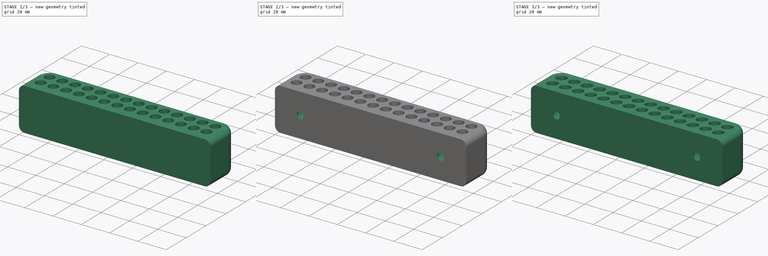
[diagram: build sequence overview — one tinted view per stage of 3, left to right]
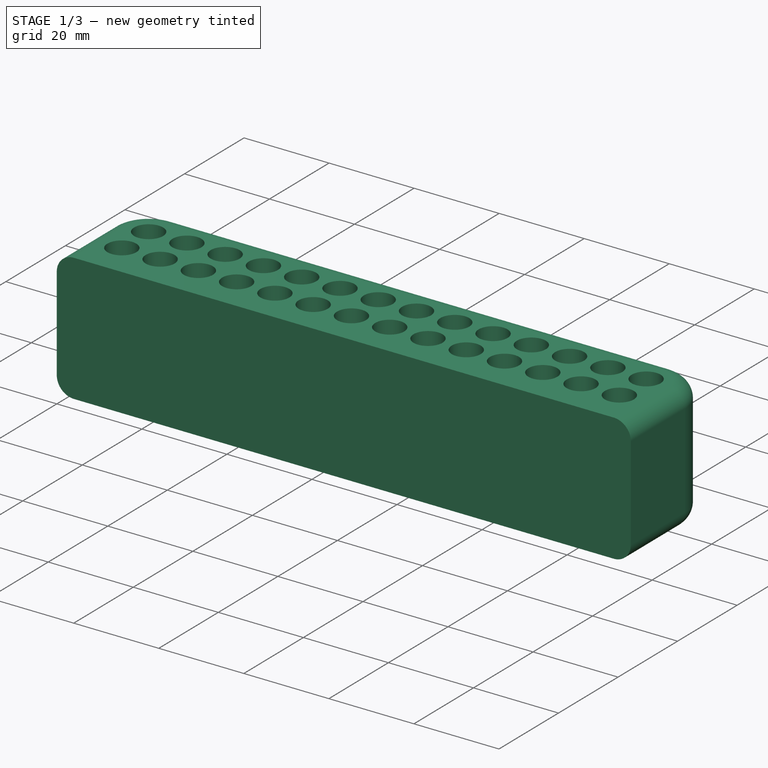
[diagram: stage 1 of 3 — iso view after this stage's code; geometry added in this stage tinted green]
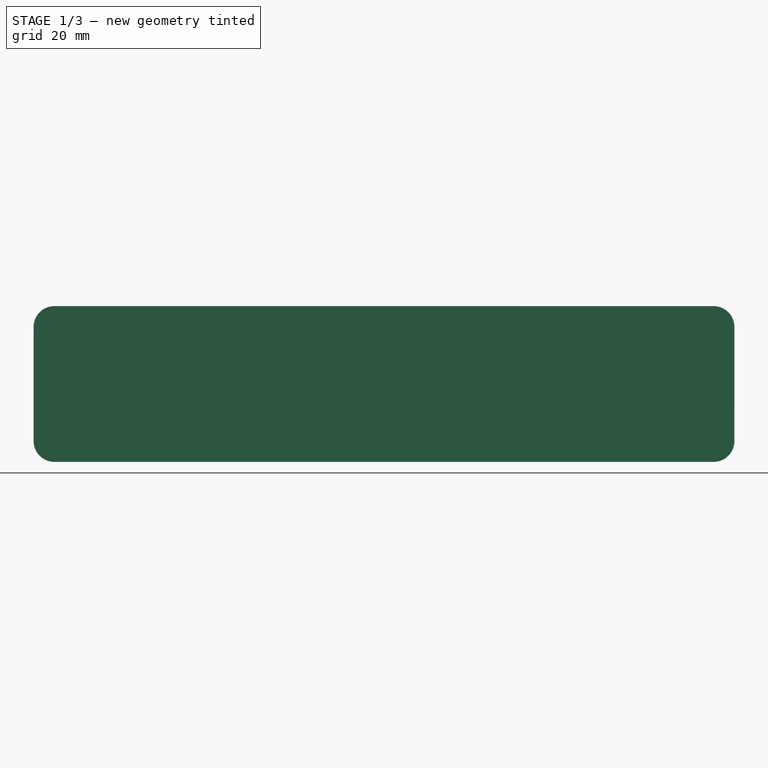
[diagram: stage 1 of 3 — front view after this stage's code; geometry added in this stage tinted green]
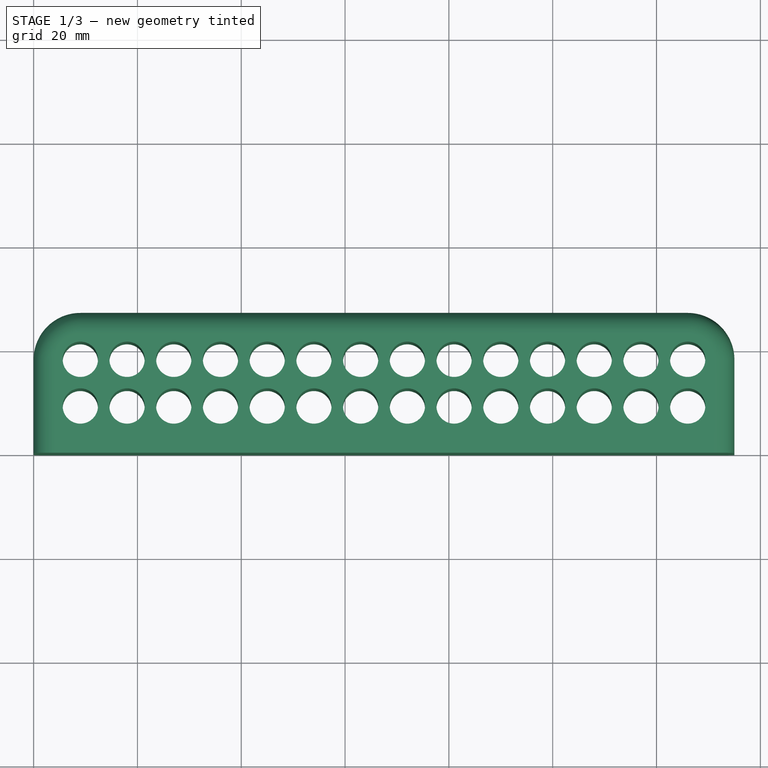
[diagram: stage 1 of 3 — top view after this stage's code; geometry added in this stage tinted green]
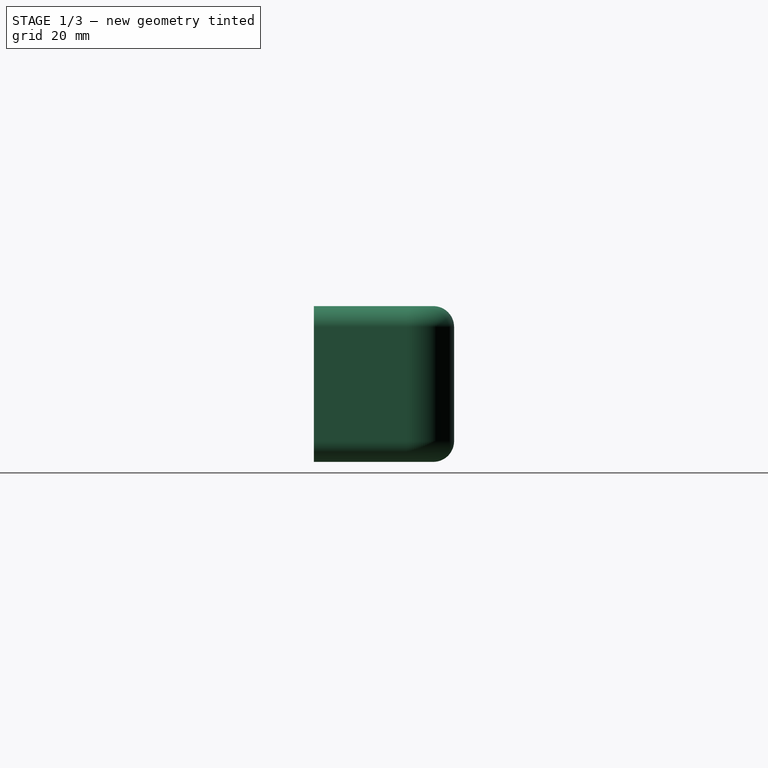
[diagram: stage 1 of 3 — right view after this stage's code; geometry added in this stage tinted green]
FCSTD DOCUMENT  (FreeCAD 1.0R39319 (Git))
Label: probe_organizer
License: All rights reserved
LicenseURL: https://en.wikipedia.org/wiki/All_rights_reserved
objects: Sketcher::SketchObject×3, PartDesign::Fillet×3, PartDesign::Pocket×2, PartDesign::Pad×1, PartDesign::Body×1
note: 25 computed .brp shape members not serialized (recipe doc carries the construction recipe); baked Part::Feature solids carry a one-line shape summary decoded from their .brp

FEATURE [Sketcher::SketchObject] Sketch
  ArcFitTolerance = 1e-06
  AttachmentSupport = -> [XY_Plane]
  FullyConstrained = true
  MakeInternals = false
  MapMode = 5
  sketch-geometry (54):
    g0: LineSegment StartX=0 StartY=0 StartZ=0 EndX=135 EndY=0 EndZ=0
    g1: LineSegment StartX=135 StartY=0 StartZ=0 EndX=135 EndY=18 EndZ=0
    g2: LineSegment StartX=126 StartY=27 StartZ=0 EndX=9 EndY=27 EndZ=0
    g3: LineSegment StartX=0 StartY=18 StartZ=0 EndX=0 EndY=0 EndZ=0
    g4: Circle CenterX=9 CenterY=9 CenterZ=0 NormalX=0 NormalY=0 NormalZ=1 AngleXU=0 Radius=3.4
    g5: Circle CenterX=9 CenterY=18 CenterZ=0 NormalX=0 NormalY=0 NormalZ=1 AngleXU=0 Radius=3.4
    g6: LineSegment [constr] StartX=9 StartY=18 StartZ=0 EndX=9 EndY=27 EndZ=0
    g7: LineSegment [constr] StartX=9 StartY=18 StartZ=0 EndX=0 EndY=18 EndZ=0
    g8: LineSegment [constr] StartX=9 StartY=9 StartZ=0 EndX=9 EndY=0 EndZ=0
    g9: LineSegment [constr] StartX=9 StartY=9 StartZ=0 EndX=9 EndY=18 EndZ=0
    g10: Circle CenterX=18 CenterY=18 CenterZ=0 NormalX=0 NormalY=0 NormalZ=1 AngleXU=0 Radius=3.4
    g11: Circle CenterX=18 CenterY=9 CenterZ=0 NormalX=0 NormalY=0 NormalZ=1 AngleXU=0 Radius=3.4
    g12: Circle CenterX=27 CenterY=18 CenterZ=0 NormalX=0 NormalY=0 NormalZ=1 AngleXU=0 Radius=3.4
    g13: Circle CenterX=27 CenterY=9 CenterZ=0 NormalX=0 NormalY=0 NormalZ=1 AngleXU=0 Radius=3.4
    g14: Circle CenterX=36 CenterY=18 CenterZ=0 NormalX=0 NormalY=0 NormalZ=1 AngleXU=0 Radius=3.4
    g15: Circle CenterX=36 CenterY=9 CenterZ=0 NormalX=0 NormalY=0 NormalZ=1 AngleXU=0 Radius=3.4
    g16: Circle CenterX=45 CenterY=18 CenterZ=0 NormalX=0 NormalY=0 NormalZ=1 AngleXU=0 Radius=3.4
    g17: Circle CenterX=45 CenterY=9 CenterZ=0 NormalX=0 NormalY=0 NormalZ=1 AngleXU=0 Radius=3.4
    g18: Circle CenterX=54 CenterY=18 CenterZ=0 NormalX=0 NormalY=0 NormalZ=1 AngleXU=0 Radius=3.4
    g19: Circle CenterX=54 CenterY=9 CenterZ=0 NormalX=0 NormalY=0 NormalZ=1 AngleXU=0 Radius=3.4
    g20: Circle CenterX=63 CenterY=18 CenterZ=0 NormalX=0 NormalY=0 NormalZ=1 AngleXU=0 Radius=3.4
    g21: Circle CenterX=63 CenterY=9 CenterZ=0 NormalX=0 NormalY=0 NormalZ=1 AngleXU=0 Radius=3.4
    g22: LineSegment [constr] StartX=9 StartY=18 StartZ=0 EndX=18 EndY=18 EndZ=0
    g23: LineSegment [constr] StartX=18 StartY=18 StartZ=0 EndX=27 EndY=18 EndZ=0
    g24: LineSegment [constr] StartX=27 StartY=18 StartZ=0 EndX=36 EndY=18 EndZ=0
    g25: LineSegment [constr] StartX=36 StartY=18 StartZ=0 EndX=45 EndY=18 EndZ=0
    g26: LineSegment [constr] StartX=45 StartY=18 StartZ=0 EndX=54 EndY=18 EndZ=0
    g27: LineSegment [constr] StartX=54 StartY=18 StartZ=0 EndX=63 EndY=18 EndZ=0
    g28: Circle CenterX=72 CenterY=9 CenterZ=0 NormalX=0 NormalY=0 NormalZ=1 AngleXU=0 Radius=3.4
    g29: Circle CenterX=72 CenterY=18 CenterZ=0 NormalX=0 NormalY=0 NormalZ=1 AngleXU=0 Radius=3.4
    g30: Circle CenterX=81 CenterY=9 CenterZ=0 NormalX=0 NormalY=0 NormalZ=1 AngleXU=0 Radius=3.4
    g31: Circle CenterX=81 CenterY=18 CenterZ=0 NormalX=0 NormalY=0 NormalZ=1 AngleXU=0 Radius=3.4
    g32: LineSegment [constr] StartX=63 StartY=18 StartZ=0 EndX=72 EndY=18 EndZ=0
    g33: LineSegment [constr] StartX=72 StartY=18 StartZ=0 EndX=81 EndY=18 EndZ=0
    g34: ArcOfCircle CenterX=126 CenterY=18 CenterZ=0 NormalX=0 NormalY=0 NormalZ=1 AngleXU=0 Radius=9 StartAngle=2e-16 EndAngle=1.5708
    g35: GeomPoint [constr] X=135 Y=27 Z=0
    g36: ArcOfCircle CenterX=9 CenterY=18 CenterZ=0 NormalX=0 NormalY=0 NormalZ=1 AngleXU=0 Radius=9 StartAngle=1.5708 EndAngle=3.14159
    g37: GeomPoint [constr] X=0 Y=27 Z=0
    g38: Circle CenterX=90 CenterY=18 CenterZ=0 NormalX=0 NormalY=0 NormalZ=1 AngleXU=0 Radius=3.4
    g39: Circle CenterX=99 CenterY=18 CenterZ=0 NormalX=0 NormalY=0 NormalZ=1 AngleXU=0 Radius=3.4
    g40: Circle CenterX=108 CenterY=18 CenterZ=0 NormalX=0 NormalY=0 NormalZ=1 AngleXU=0 Radius=3.4
    g41: Circle CenterX=90 CenterY=9 CenterZ=0 NormalX=0 NormalY=0 NormalZ=1 AngleXU=0 Radius=3.4
    g42: Circle CenterX=99 CenterY=9 CenterZ=0 NormalX=0 NormalY=0 NormalZ=1 AngleXU=0 Radius=3.4
    g43: Circle CenterX=108 CenterY=9 CenterZ=0 NormalX=0 NormalY=0 NormalZ=1 AngleXU=0 Radius=3.4
    g44: Circle CenterX=117 CenterY=18 CenterZ=0 NormalX=0 NormalY=0 NormalZ=1 AngleXU=0 Radius=3.4
    g45: Circle CenterX=117 CenterY=9 CenterZ=0 NormalX=0 NormalY=0 NormalZ=1 AngleXU=0 Radius=3.4
    g46: Circle CenterX=126 CenterY=18 CenterZ=0 NormalX=0 NormalY=0 NormalZ=1 AngleXU=0 Radius=3.4
    g47: Circle CenterX=126 CenterY=9 CenterZ=0 NormalX=0 NormalY=0 NormalZ=1 AngleXU=0 Radius=3.4
    g48: LineSegment [constr] StartX=81 StartY=18 StartZ=0 EndX=90 EndY=18 EndZ=0
    g49: LineSegment [constr] StartX=90 StartY=18 StartZ=0 EndX=99 EndY=18 EndZ=0
    g50: LineSegment [constr] StartX=99 StartY=18 StartZ=0 EndX=108 EndY=18 EndZ=0
    g51: LineSegment [constr] StartX=108 StartY=18 StartZ=0 EndX=117 EndY=18 EndZ=0
    g52: LineSegment [constr] StartX=117 StartY=18 StartZ=0 EndX=126 EndY=18 EndZ=0
    g53: LineSegment [constr] StartX=126 StartY=18 StartZ=0 EndX=135 EndY=18 EndZ=0
  constraints (141):
    c: Coincident(g0,g1)
    c: Coincident(g3,g0)
    c: Horizontal(g0)
    c: Horizontal(g2)
    c: Vertical(g1)
    c: Vertical(g3)
    c: Coincident(g0,g-1)
    c: Diameter(g5) = 6.8
    c: Equal(g4,g5)
    c: DistanceY(g4,g5) = 9
    c: Coincident(g6,g5)
    c: PointOnObject(g6,g2)
    c: Vertical(g6)
    c: Coincident(g7,g5)
    c: PointOnObject(g7,g3)
    c: Horizontal(g7)
    c: Coincident(g8,g4)
    c: PointOnObject(g8,g0)
    c: Vertical(g8)
    c: Equal(g8,g7)
    c: Coincident(g9,g4)
    c: Coincident(g9,g5)
    c: Equal(g9,g6)
    c: Vertical(g4,g5)
    c: Equal(g10,g11)
    c: Equal(g11,g12)
    c: Equal(g12,g13)
    c: Equal(g13,g14)
    c: Equal(g14,g15)
    c: Equal(g15,g16)
    c: Equal(g16,g17)
    c: Equal(g17,g18)
    c: Equal(g18,g19)
    c: Equal(g19,g5)
    c: Equal(g5,g21)
    c: Equal(g21,g20)
    c: Horizontal(g5,g10)
    c: Horizontal(g10,g12)
    c: Horizontal(g12,g14)
    c: Horizontal(g14,g16)
    c: Horizontal(g16,g18)
    c: Horizontal(g18,g20)
    c: Horizontal(g4,g11)
    c: Horizontal(g11,g13)
    c: Horizontal(g13,g15)
    c: Horizontal(g15,g17)
    c: Horizontal(g17,g19)
    c: Horizontal(g19,g21)
    c: Vertical(g11,g10)
    c: Vertical(g13,g12)
    c: Vertical(g15,g14)
    c: Vertical(g17,g16)
    c: Vertical(g19,g18)
    c: Vertical(g21,g20)
    c: Coincident(g22,g5)
    c: Coincident(g22,g10)
    c: Coincident(g23,g10)
    c: Coincident(g23,g12)
    c: Coincident(g24,g12)
    c: Coincident(g24,g14)
    c: Coincident(g25,g14)
    c: Coincident(g25,g16)
    c: Coincident(g26,g16)
    c: Coincident(g26,g18)
    c: Coincident(g27,g18)
    c: Coincident(g27,g20)
    c: Equal(g22,g23)
    c: Equal(g23,g24)
    c: Equal(g24,g25)
    c: Equal(g25,g26)
    c: Equal(g26,g27)
    c: Equal(g22,g9)
    c: Horizontal(g31,g29)
    c: Horizontal(g29,g20)
    c: Horizontal(g30,g28)
    c: Horizontal(g28,g21)
    c: Equal(g28,g31)
    c: Equal(g31,g30)
    c: Equal(g30,g29)
    c: Equal(g29,g20)
    c: Coincident(g32,g20)
    c: Coincident(g32,g29)
    c: Coincident(g33,g29)
    c: Coincident(g33,g31)
    c: Equal(g33,g32)
    c: Equal(g32,g27)
    c: Vertical(g30,g31)
    c: Vertical(g28,g29)
    c: PointOnObject(g35,g1)
    c: PointOnObject(g35,g2)
    c: Tangent(g1,g34) = -1.5708
    c: Tangent(g2,g34) = -1.5708
    c: PointOnObject(g37,g2)
    c: PointOnObject(g37,g3)
    c: Tangent(g2,g36) = -1.5708
    c: Tangent(g3,g36) = -1.5708
    c: Coincident(g36,g5)
    c: Equal(g41,g38)
    c: Equal(g38,g39)
    c: Equal(g39,g42)
    c: Equal(g42,g40)
    c: Equal(g40,g43)
    c: Equal(g43,g45)
    c: Equal(g45,g47)
    c: Equal(g47,g46)
    c: Equal(g46,g44)
    c: Equal(g44,g31)
    c: Horizontal(g30,g41)
    c: Horizontal(g41,g42)
    c: Horizontal(g42,g43)
    c: Horizontal(g43,g45)
    c: Horizontal(g45,g47)
    c: Horizontal(g31,g38)
    c: Horizontal(g38,g39)
    c: Horizontal(g39,g40)
    c: Horizontal(g40,g44)
    c: Horizontal(g44,g46)
    c: Vertical(g41,g38)
    c: Vertical(g42,g39)
    c: Vertical(g43,g40)
    c: Vertical(g45,g44)
    c: Vertical(g47,g46)
    c: Coincident(g48,g31)
    c: Coincident(g48,g38)
    c: Coincident(g49,g38)
    c: Coincident(g49,g39)
    c: Coincident(g50,g39)
    c: Coincident(g50,g40)
    c: Coincident(g51,g40)
    c: Coincident(g51,g44)
    c: Coincident(g52,g44)
    c: Coincident(g52,g46)
    c: Coincident(g53,g46)
    c: PointOnObject(g53,g1)
    c: Horizontal(g53)
    c: Equal(g53,g52)
    c: Equal(g52,g51)
    c: Equal(g51,g50)
    c: Equal(g50,g49)
    c: Equal(g49,g48)
    c: Coincident(g34,g46)
FEATURE [PartDesign::Pad] Pad
  Direction = (0,0,1)
  Length = 30
  Length2 = 10
  Profile = -> Sketch
  ReferenceAxis = -> Sketch [N_Axis]
  Refine = true
  Suppressed = false
  Type = 0
FEATURE [PartDesign::Fillet] Fillet
  Base = -> Pad [Edge13,Edge12]
  BaseFeature = -> Pad
  Radius = 4
  Refine = true
  SupportTransform = false
  Suppressed = false
  UseAllEdges = false
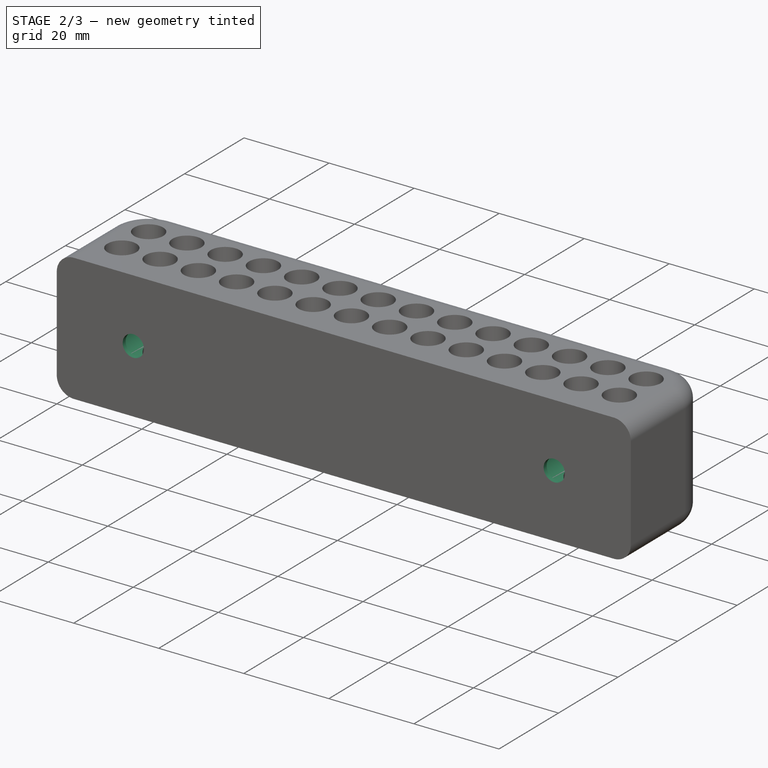
[diagram: stage 2 of 3 — iso view after this stage's code; geometry added in this stage tinted green]
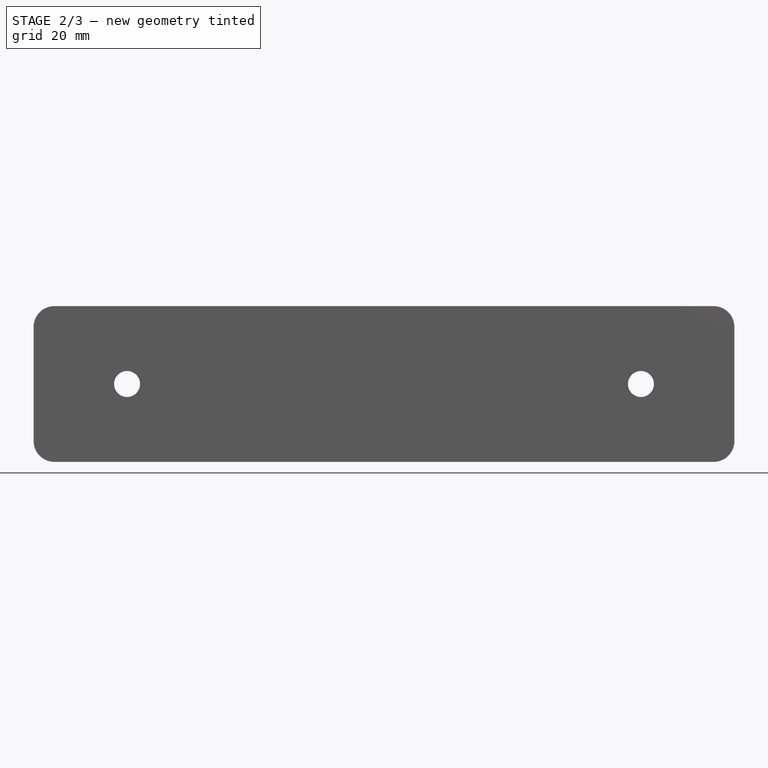
[diagram: stage 2 of 3 — front view after this stage's code; geometry added in this stage tinted green]
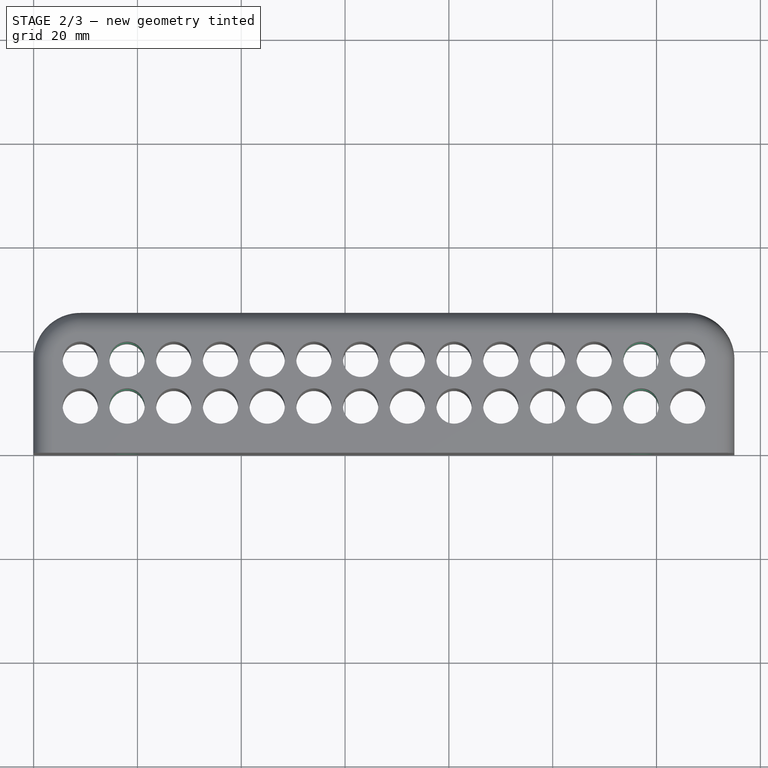
[diagram: stage 2 of 3 — top view after this stage's code; geometry added in this stage tinted green]
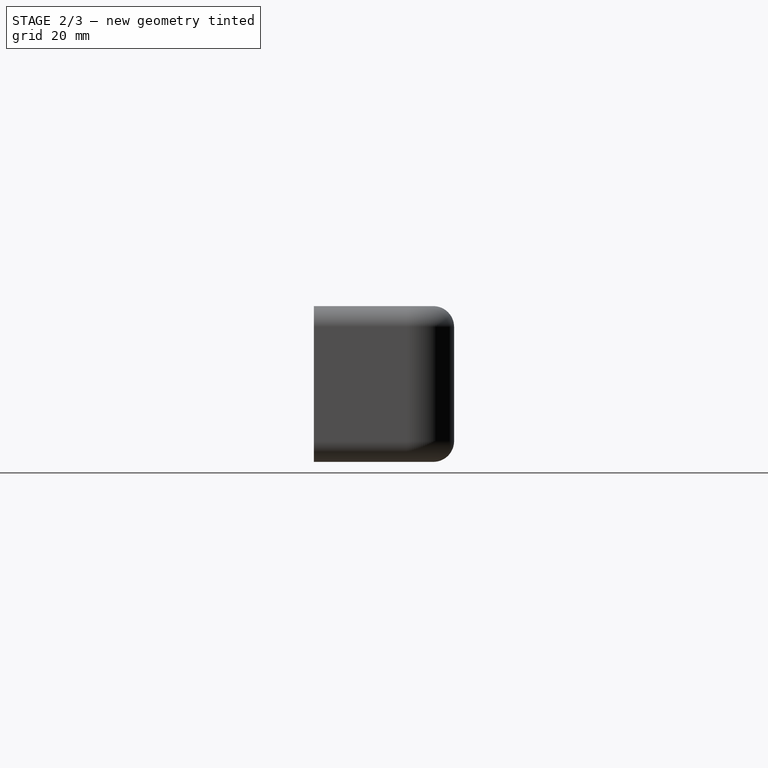
[diagram: stage 2 of 3 — right view after this stage's code; geometry added in this stage tinted green]
FEATURE [Sketcher::SketchObject] Sketch001
  ArcFitTolerance = 1e-06
  AttachmentSupport = -> [Fillet]
  ExternalGeometry = -> [Fillet]
  FullyConstrained = true
  MakeInternals = false
  MapMode = 5
  Placement = pos=(0,27,0) rot=(0,0.707107,0.707107;3.14159rad)
  sketch-geometry (6):
    g0: Circle CenterX=-117 CenterY=15 CenterZ=0 NormalX=0 NormalY=0 NormalZ=1 AngleXU=0 Radius=2.5
    g1: Circle CenterX=-18 CenterY=15 CenterZ=0 NormalX=0 NormalY=0 NormalZ=1 AngleXU=0 Radius=2.5
    g2: LineSegment [constr] StartX=-117 StartY=15 StartZ=0 EndX=-126 EndY=26 EndZ=0
    g3: LineSegment [constr] StartX=-117 StartY=15 StartZ=0 EndX=-126 EndY=4 EndZ=0
    g4: LineSegment [constr] StartX=-9 StartY=4 StartZ=0 EndX=-18 EndY=15 EndZ=0
    g5: LineSegment [constr] StartX=-18 StartY=15 StartZ=0 EndX=-9 EndY=26 EndZ=0
  constraints (14):
    c: Diameter(g0) = 5
    c: Equal(g0,g1)
    c: Horizontal(g1,g0)
    c: Coincident(g2,g0)
    c: Coincident(g2,g-3)
    c: Coincident(g3,g0)
    c: Coincident(g3,g-3)
    c: Coincident(g4,g-4)
    c: Coincident(g4,g1)
    c: Coincident(g5,g1)
    c: Coincident(g5,g-4)
    c: Equal(g5,g4)
    c: Equal(g4,g3)
    c: DistanceX(g3,g0) = 9
FEATURE [PartDesign::Pocket] Pocket
  BaseFeature = -> Fillet
  Direction = (0,-1,2e-16)
  Length = 35
  Length2 = 5
  Profile = -> Sketch001
  ReferenceAxis = -> Sketch001 [N_Axis]
  Refine = true
  Suppressed = false
  Type = 0
FEATURE [Sketcher::SketchObject] Sketch002
  ArcFitTolerance = 1e-06
  AttachmentSupport = -> [Pocket]
  ExternalGeometry = -> [Pocket]
  FullyConstrained = true
  MakeInternals = false
  MapMode = 5
  Placement = pos=(0,27,0) rot=(0,0.707107,0.707107;3.14159rad)
  sketch-geometry (2):
    g0: Circle CenterX=-117 CenterY=15 CenterZ=0 NormalX=0 NormalY=0 NormalZ=1 AngleXU=0 Radius=5.5
    g1: Circle CenterX=-18 CenterY=15 CenterZ=0 NormalX=0 NormalY=0 NormalZ=1 AngleXU=0 Radius=5.5
  constraints (4):
    c: Coincident(g0,g-3)
    c: Coincident(g1,g-4)
    c: Equal(g0,g1)
    c: Diameter(g0) = 11
FEATURE [PartDesign::Pocket] Pocket001
  BaseFeature = -> Pocket
  Direction = (0,-1,2e-16)
  Length = 26
  Length2 = 5
  Profile = -> Sketch002
  ReferenceAxis = -> Sketch002 [N_Axis]
  Refine = true
  Suppressed = false
  Type = 0
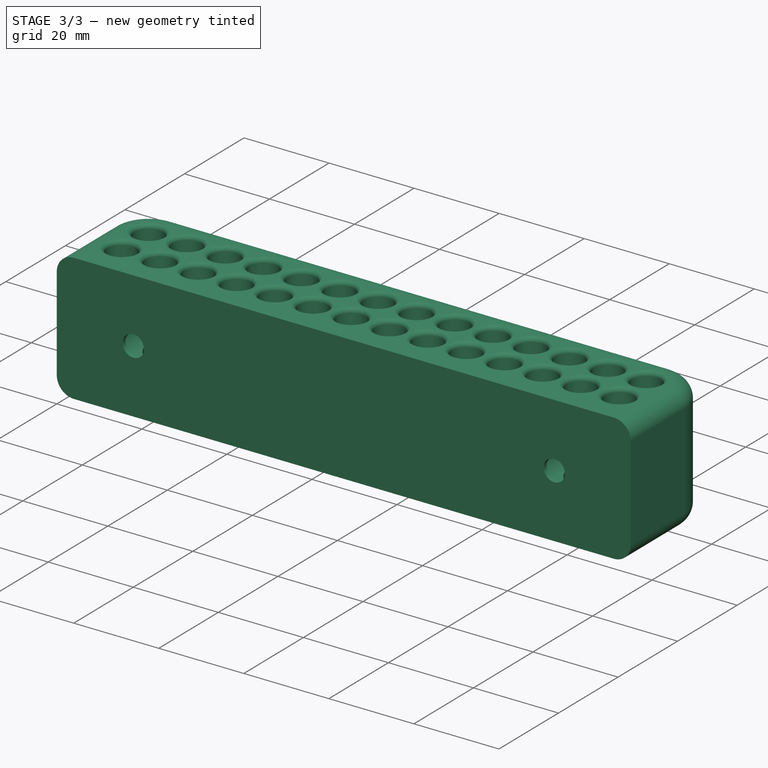
[diagram: stage 3 of 3 — iso view after this stage's code; geometry added in this stage tinted green]
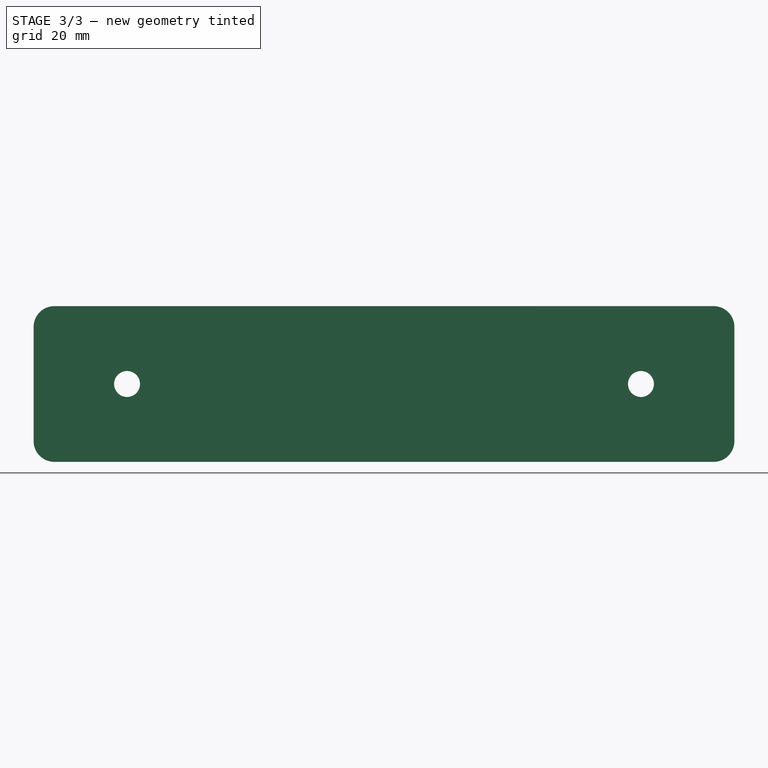
[diagram: stage 3 of 3 — front view after this stage's code; geometry added in this stage tinted green]
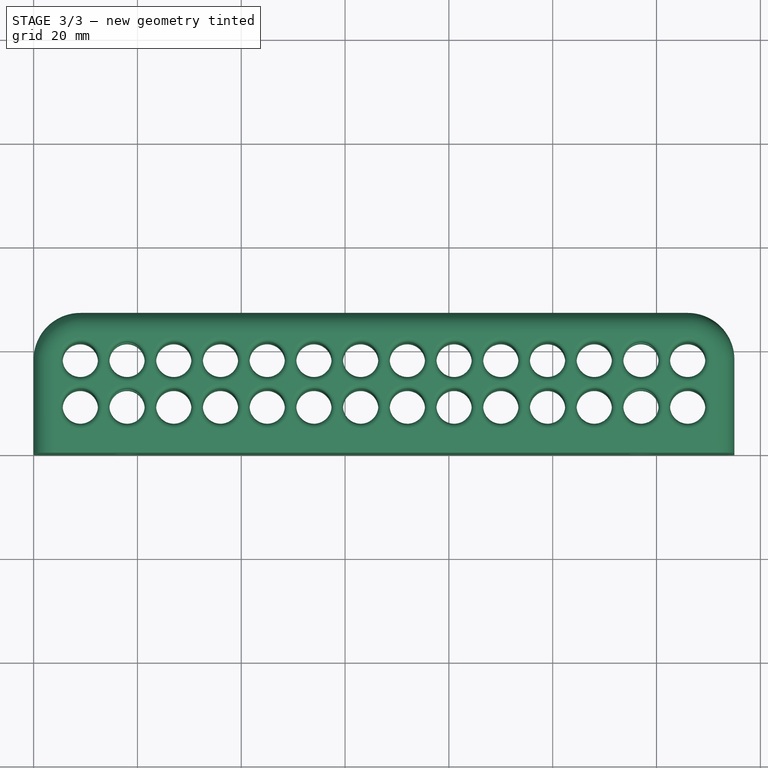
[diagram: stage 3 of 3 — top view after this stage's code; geometry added in this stage tinted green]
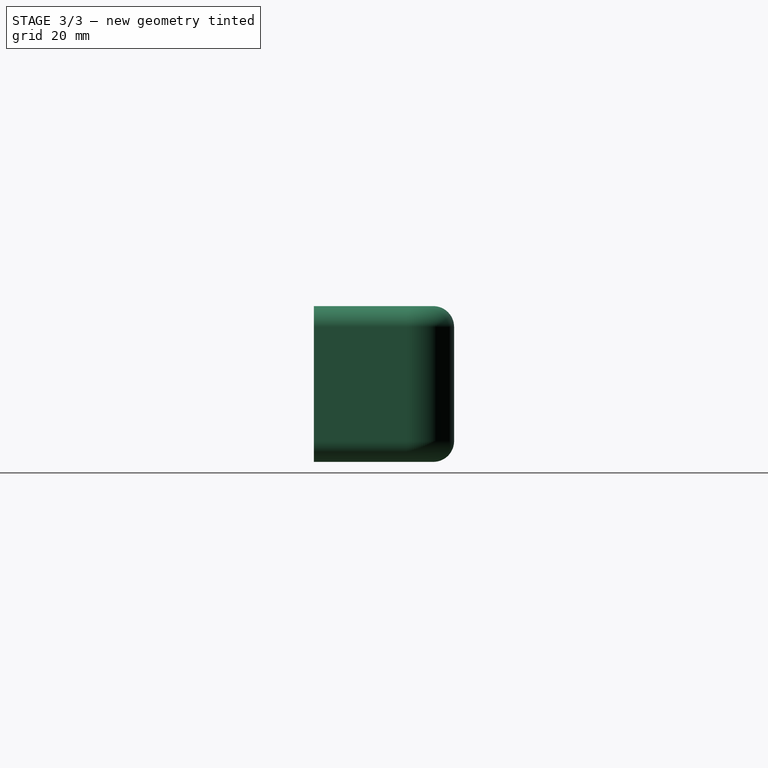
[diagram: stage 3 of 3 — right view after this stage's code; geometry added in this stage tinted green]
FEATURE [PartDesign::Fillet] Fillet001
  Base = -> Pocket001 [Edge145,Edge146]
  BaseFeature = -> Pocket001
  Radius = 1
  Refine = true
  SupportTransform = false
  Suppressed = false
  UseAllEdges = false
FEATURE [PartDesign::Fillet] Fillet002
  Base = -> Fillet001 [Edge77,Edge83,Edge78,Edge84,Edge86,Edge85,Edge92,Edge97,Edge98,Edge93,Edge94,Edge99,Edge100,Edge95,Edge90,Edge88,Edge87,Edge89,Edge76,Edge82,Edge81,Edge75,Edge74,Edge80,Edge73,Edge79,Edge91,Edge96]
  BaseFeature = -> Fillet001
  Radius = 1
  Refine = true
  SupportTransform = false
  Suppressed = false
  UseAllEdges = false
FEATURE [PartDesign::Body] Body
  AllowCompound = false
  Group = -> [Sketch,Pad,Fillet,Sketch001,Pocket,Sketch002,Pocket001,Fillet001,Fillet002]
  Origin = -> Origin
  Tip = -> Fillet002
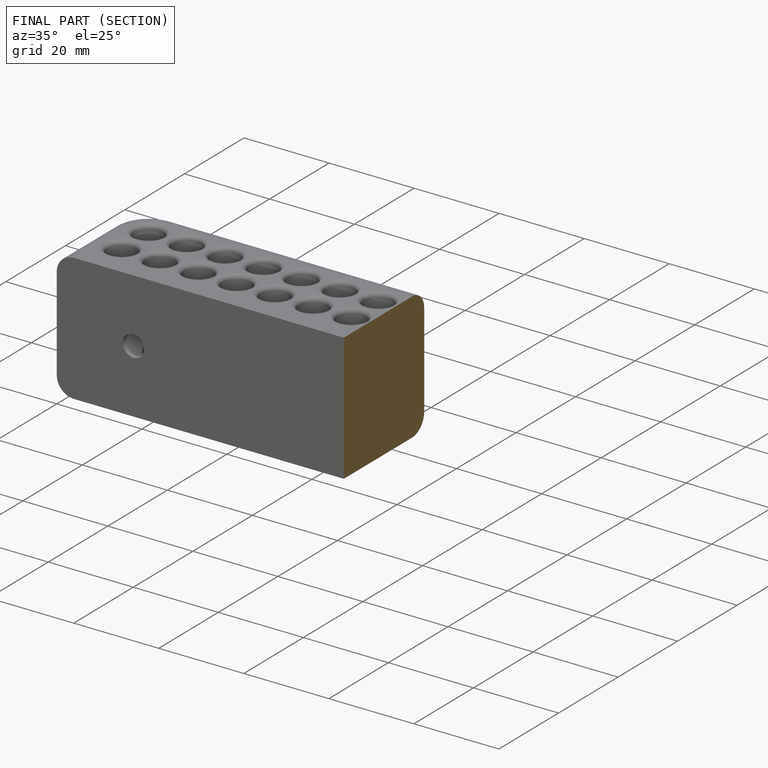
[diagram: finished part — half-section view (interior)]
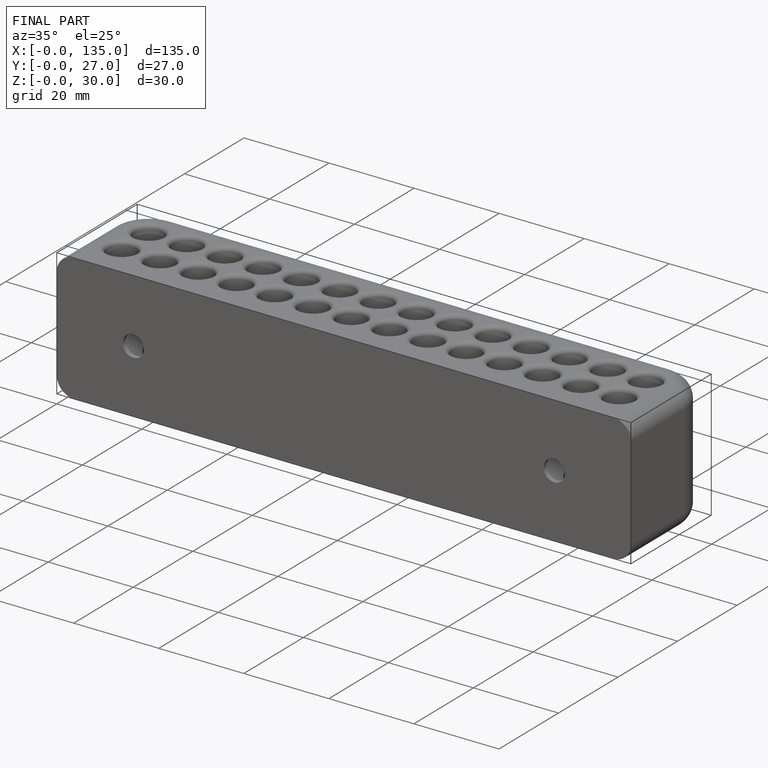
[diagram: finished part — iso view with bounding-box wireframe]
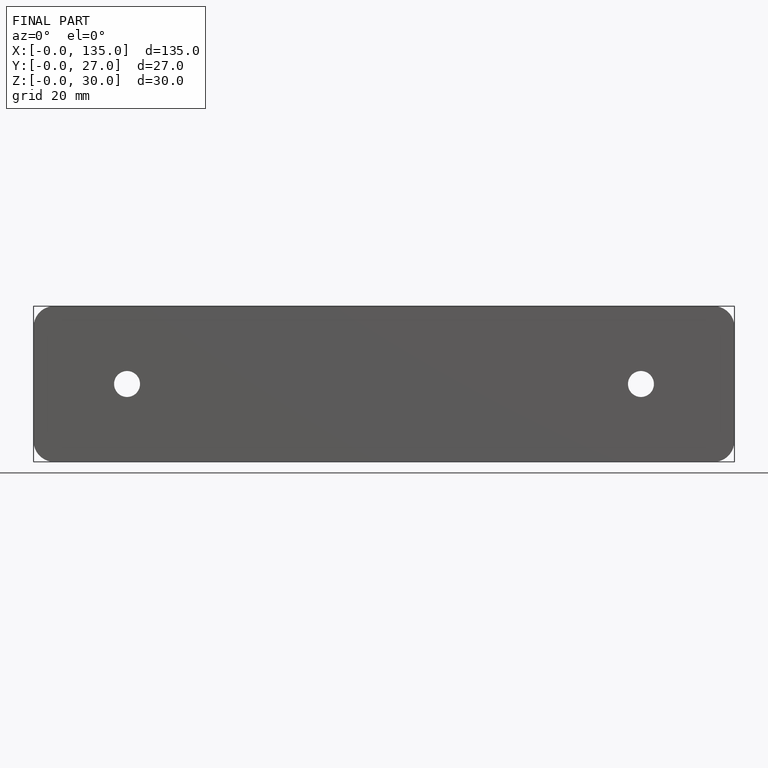
[diagram: finished part — front view with bounding-box wireframe]
